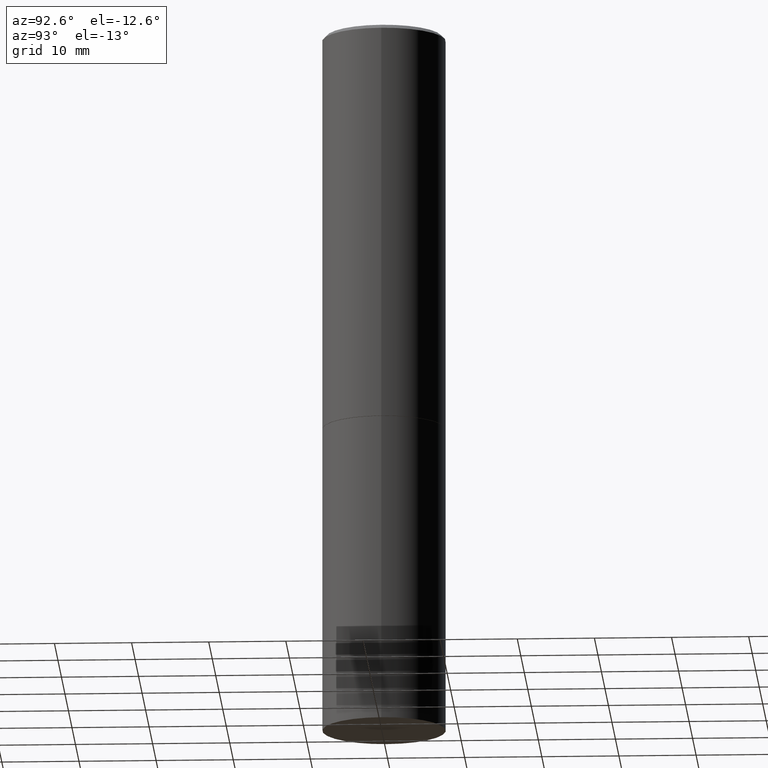
[diagram: clean part render]
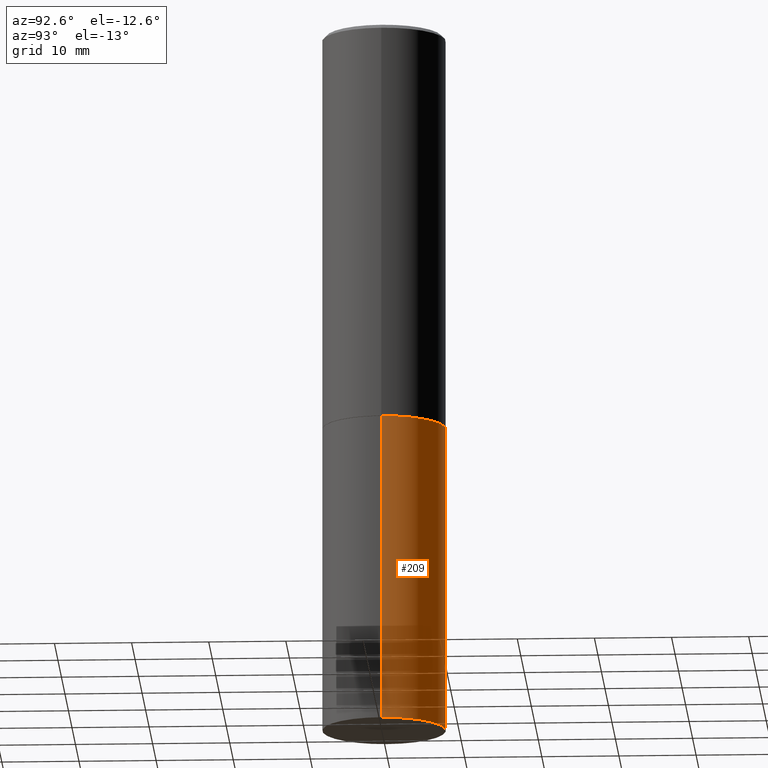
[diagram: same view with one face highlighted and labeled with its STEP entity id]
A machine part, auxiliary view. The second image highlights one B-rep face of the part: STEP entity #209.
In plain terms, the highlighted cylindrical surface (partial cylindrical patch) has radius 7.9997 mm, axis along (-0, 0, 1).
Its self-contained STEP definition (entity closure, byte-faithful):
#5 = EDGE_CURVE ( 'NONE', #115, #107, #53, .T. ) ;
#8 = AXIS2_PLACEMENT_3D ( 'NONE', #176, #316, #65 ) ;
#11 = CARTESIAN_POINT ( 'NONE',  ( 0.3149500000000000077, -9.347044692216978073E-15, -2.047199999999999687 ) ) ;
#26 = EDGE_CURVE ( 'NONE', #213, #107, #346, .T. ) ;
#27 = EDGE_LOOP ( 'NONE', ( #80, #217, #192, #224 ) ) ;
#50 = CARTESIAN_POINT ( 'NONE',  ( -0.3149500000000000077, 2.237854346276435590E-15, -1.549218606675782676E-29 ) ) ;
#53 = LINE ( 'NONE', #50, #130 ) ;
#65 = DIRECTION ( 'NONE',  ( 1.000000000000000000, -6.982962677686263555E-15, 0.000000000000000000 ) ) ;
#71 = DIRECTION ( 'NONE',  ( -2.445468806185136877E-29, 3.491481338843145188E-15, 1.000000000000000000 ) ) ;
#74 = DIRECTION ( 'NONE',  ( -2.445468806185136597E-29, 3.491481338843145583E-15, 1.000000000000000000 ) ) ;
#80 = ORIENTED_EDGE ( 'NONE', *, *, #179, .T. ) ;
#83 = FACE_OUTER_BOUND ( 'NONE', #27, .T. ) ;
#107 = VERTEX_POINT ( 'NONE', #142 ) ;
#114 = DIRECTION ( 'NONE',  ( -2.445468806185136877E-29, 3.491481338843145188E-15, 1.000000000000000000 ) ) ;
#115 = VERTEX_POINT ( 'NONE', #334 ) ;
#130 = VECTOR ( 'NONE', #114, 39.37007874015748143 ) ;
#142 = CARTESIAN_POINT ( 'NONE',  ( -0.3149500000000000077, -7.659098656808343322E-15, -2.047199999999999687 ) ) ;
#167 = CYLINDRICAL_SURFACE ( 'NONE', #241, 0.3149500000000000077 ) ;
#176 = CARTESIAN_POINT ( 'NONE',  ( 8.857488016002564476E-29, -1.264614540928987199E-14, -3.621999999999999886 ) ) ;
#179 = EDGE_CURVE ( 'NONE', #247, #115, #237, .T. ) ;
#192 = ORIENTED_EDGE ( 'NONE', *, *, #26, .F. ) ;
#195 = CARTESIAN_POINT ( 'NONE',  ( 0.000000000000000000, 0.000000000000000000, 0.000000000000000000 ) ) ;
#209 = ADVANCED_FACE ( 'NONE', ( #83 ), #167, .T. ) ;
#210 = LINE ( 'NONE', #266, #249 ) ;
#211 = CARTESIAN_POINT ( 'NONE',  ( 0.3149500000000000077, -1.484542950462716186E-14, -3.621999999999999886 ) ) ;
#213 = VERTEX_POINT ( 'NONE', #11 ) ;
#217 = ORIENTED_EDGE ( 'NONE', *, *, #5, .T. ) ;
#222 = CARTESIAN_POINT ( 'NONE',  ( 5.006363740022211120E-29, -7.147760596879686624E-15, -2.047199999999999687 ) ) ;
#224 = ORIENTED_EDGE ( 'NONE', *, *, #230, .F. ) ;
#230 = EDGE_CURVE ( 'NONE', #247, #213, #210, .T. ) ;
#237 = CIRCLE ( 'NONE', #8, 0.3149500000000000077 ) ;
#241 = AXIS2_PLACEMENT_3D ( 'NONE', #195, #307, #348 ) ;
#246 = DIRECTION ( 'NONE',  ( 1.000000000000000000, -6.982962677686269866E-15, 0.000000000000000000 ) ) ;
#247 = VERTEX_POINT ( 'NONE', #211 ) ;
#249 = VECTOR ( 'NONE', #71, 39.37007874015748143 ) ;
#266 = CARTESIAN_POINT ( 'NONE',  ( 0.3149500000000000077, -2.199284095337289871E-15, 1.535751875536930130E-29 ) ) ;
#307 = DIRECTION ( 'NONE',  ( -2.445468806185136597E-29, 3.491481338843145583E-15, 1.000000000000000000 ) ) ;
#316 = DIRECTION ( 'NONE',  ( -2.445468806185136597E-29, 3.491481338843145583E-15, 1.000000000000000000 ) ) ;
#334 = CARTESIAN_POINT ( 'NONE',  ( -0.3149500000000000077, -7.659098656808343322E-15, -3.621999999999999886 ) ) ;
#340 = AXIS2_PLACEMENT_3D ( 'NONE', #222, #74, #246 ) ;
#346 = CIRCLE ( 'NONE', #340, 0.3149500000000000077 ) ;
#348 = DIRECTION ( 'NONE',  ( 1.000000000000000000, -6.982962677686266711E-15, 4.876176775795936353E-29 ) ) ;